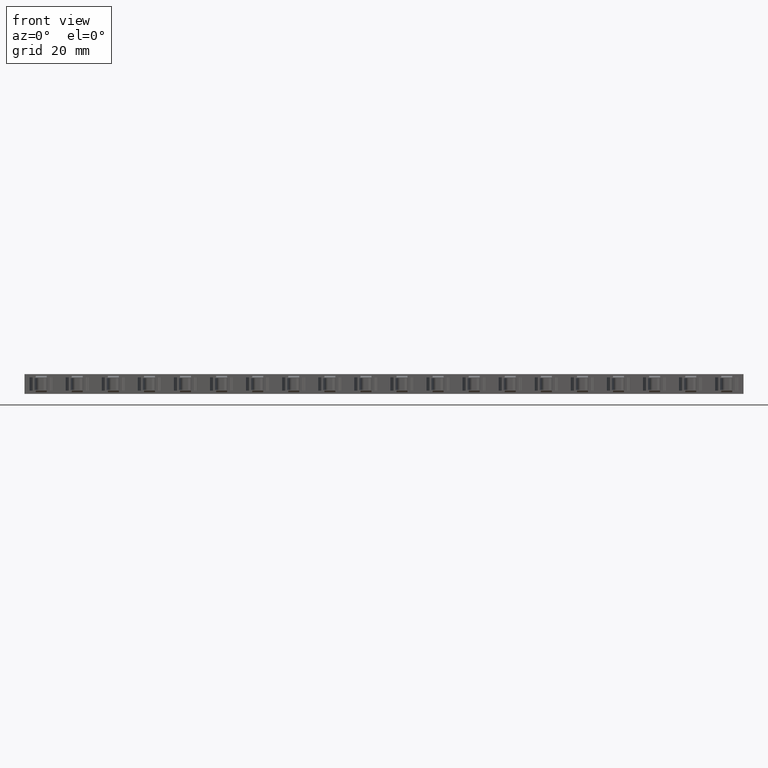
[diagram: clean part render]
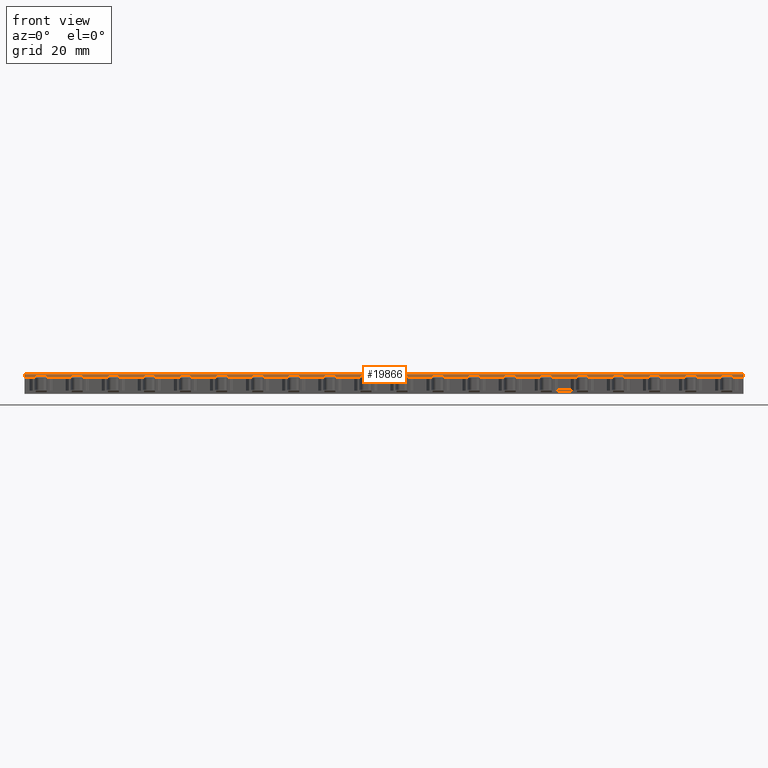
[diagram: same view with one face highlighted and labeled with its STEP entity id]
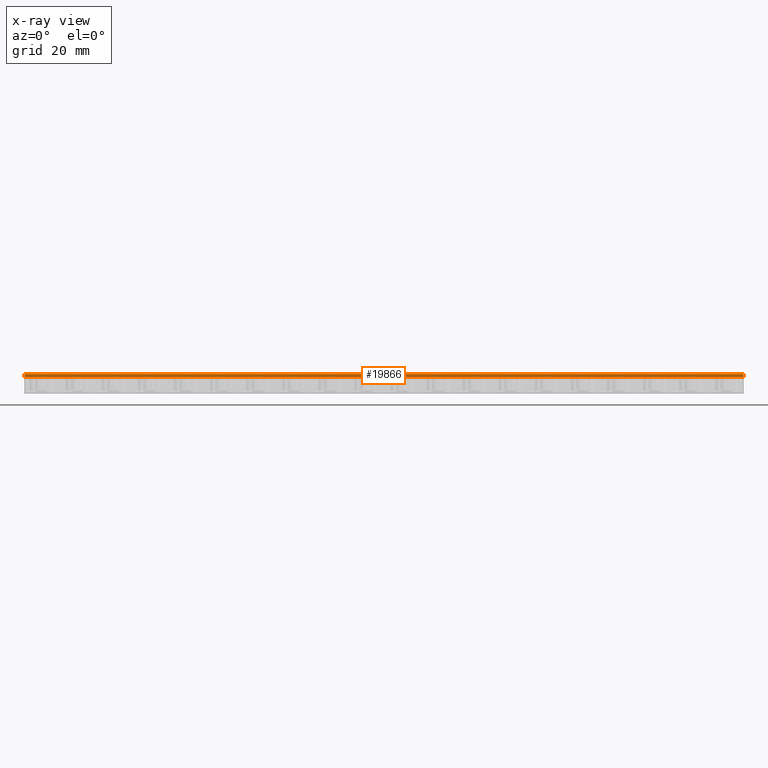
[diagram: x-ray of the same camera — body ghosted, the highlighted face saturated]
A machine part, front view. The second image highlights one B-rep face of the part: STEP entity #19866.
The next image is the same camera in x-ray: the body ghosted, the highlighted face saturated — about 0% of this face is hidden behind the body in this view.
In plain terms, the highlighted planar face has unit normal (0, -1, 0).
Its self-contained STEP definition (entity closure, byte-faithful):
#1797 = EDGE_CURVE ( 'NONE', #14134, #14079, #11933, .T. ) ;
#1800 = EDGE_CURVE ( 'NONE', #14243, #14134, #11969, .T. ) ;
#1832 = EDGE_CURVE ( 'NONE', #14260, #14243, #12057, .T. ) ;
#1840 = EDGE_CURVE ( 'NONE', #14260, #14079, #12075, .T. ) ;
#4171 = ORIENTED_EDGE ( 'NONE', *, *, #1800, .T. ) ;
#4220 = ORIENTED_EDGE ( 'NONE', *, *, #1797, .T. ) ;
#4247 = ORIENTED_EDGE ( 'NONE', *, *, #1840, .F. ) ;
#4285 = ORIENTED_EDGE ( 'NONE', *, *, #1832, .T. ) ;
#6987 = FACE_OUTER_BOUND ( 'NONE', #17811, .T. ) ;
#6988 = PLANE ( 'NONE',  #17213 ) ;
#6992 = DIRECTION ( 'NONE',  ( 0.0000000000000000000, -0.0000000000000000000, -1.000000000000000000 ) ) ;
#7027 = DIRECTION ( 'NONE',  ( 0.0000000000000000000, -1.000000000000000000, 0.0000000000000000000 ) ) ;
#7039 = CARTESIAN_POINT ( 'NONE',  ( 1130.994470802330200, 672.9078760720548200, -0.7499999999999997800 ) ) ;
#9188 = CARTESIAN_POINT ( 'NONE',  ( 991.5944708023300800, 672.9078760720548200, 3.750000000000000000 ) ) ;
#9259 = CARTESIAN_POINT ( 'NONE',  ( 1154.994472239529600, 672.9078760720548200, 3.000000000000000000 ) ) ;
#9275 = CARTESIAN_POINT ( 'NONE',  ( 1154.994472239529600, 672.9078760720548200, 3.750000000000000000 ) ) ;
#11933 = LINE ( 'NONE', #11966, #22352 ) ;
#11966 = CARTESIAN_POINT ( 'NONE',  ( 991.5944708023300800, 672.9078760720548200, -0.7499999999999997800 ) ) ;
#11967 = DIRECTION ( 'NONE',  ( 0.0000000000000000000, -0.0000000000000000000, -1.000000000000000000 ) ) ;
#11968 = CARTESIAN_POINT ( 'NONE',  ( 1130.994470802330200, 672.9078760720548200, 3.750000000000000000 ) ) ;
#11969 = LINE ( 'NONE', #11968, #22370 ) ;
#11971 = DIRECTION ( 'NONE',  ( -1.000000000000000000, -0.0000000000000000000, -0.0000000000000000000 ) ) ;
#12057 = LINE ( 'NONE', #12062, #22426 ) ;
#12059 = DIRECTION ( 'NONE',  ( -0.0000000000000000000, 0.0000000000000000000, 1.000000000000000000 ) ) ;
#12062 = CARTESIAN_POINT ( 'NONE',  ( 1154.994472239529600, 672.9078760720548200, -0.7499999999999997800 ) ) ;
#12075 = LINE ( 'NONE', #12099, #22417 ) ;
#12093 = DIRECTION ( 'NONE',  ( -1.000000000000000000, -0.0000000000000000000, 0.0000000000000000000 ) ) ;
#12099 = CARTESIAN_POINT ( 'NONE',  ( 1136.944468391975100, 672.9078760720548200, 3.000000000000000000 ) ) ;
#12991 = CARTESIAN_POINT ( 'NONE',  ( 991.5944708023300800, 672.9078760720548200, 3.000000000000000000 ) ) ;
#14079 = VERTEX_POINT ( 'NONE', #12991 ) ;
#14134 = VERTEX_POINT ( 'NONE', #9188 ) ;
#14243 = VERTEX_POINT ( 'NONE', #9275 ) ;
#14260 = VERTEX_POINT ( 'NONE', #9259 ) ;
#17213 = AXIS2_PLACEMENT_3D ( 'NONE', #7039, #7027, #6992 ) ;
#17811 = EDGE_LOOP ( 'NONE', ( #4171, #4220, #4247, #4285 ) ) ;
#19866 = ADVANCED_FACE ( 'NONE', ( #6987 ), #6988, .T. ) ;
#22352 = VECTOR ( 'NONE', #11967, 1000.000000000000000 ) ;
#22370 = VECTOR ( 'NONE', #11971, 1000.000000000000000 ) ;
#22417 = VECTOR ( 'NONE', #12093, 1000.000000000000000 ) ;
#22426 = VECTOR ( 'NONE', #12059, 1000.000000000000000 ) ;